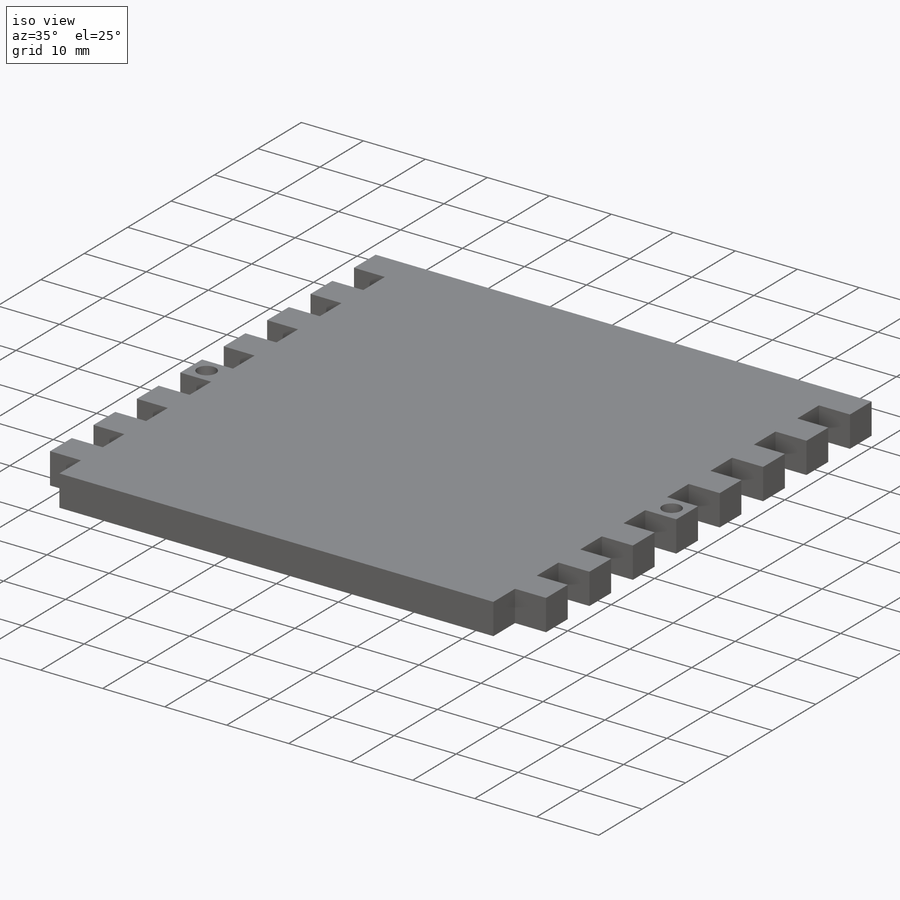
[diagram: iso view]
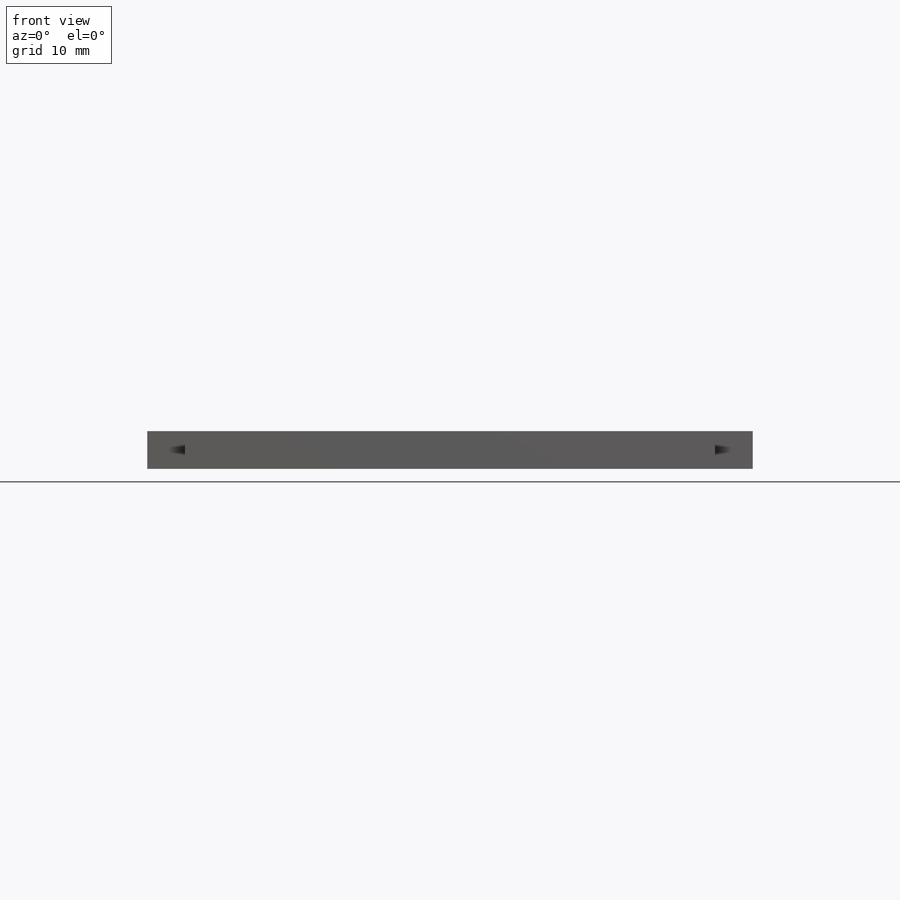
[diagram: front view]
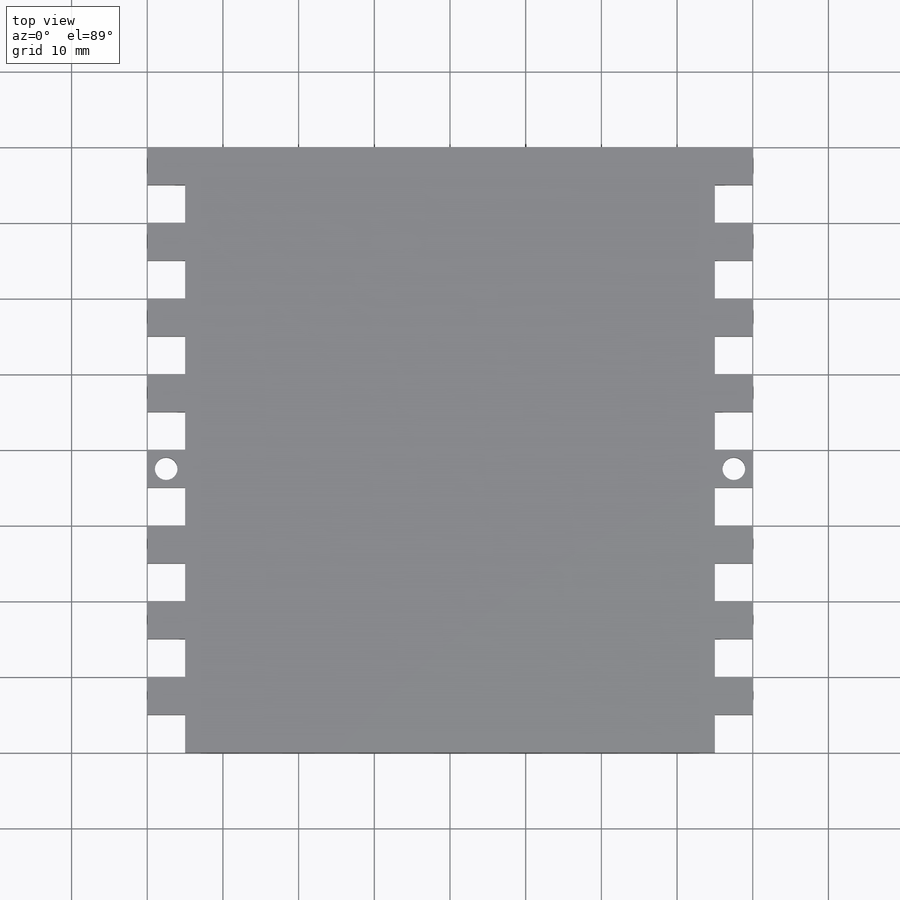
[diagram: top view]
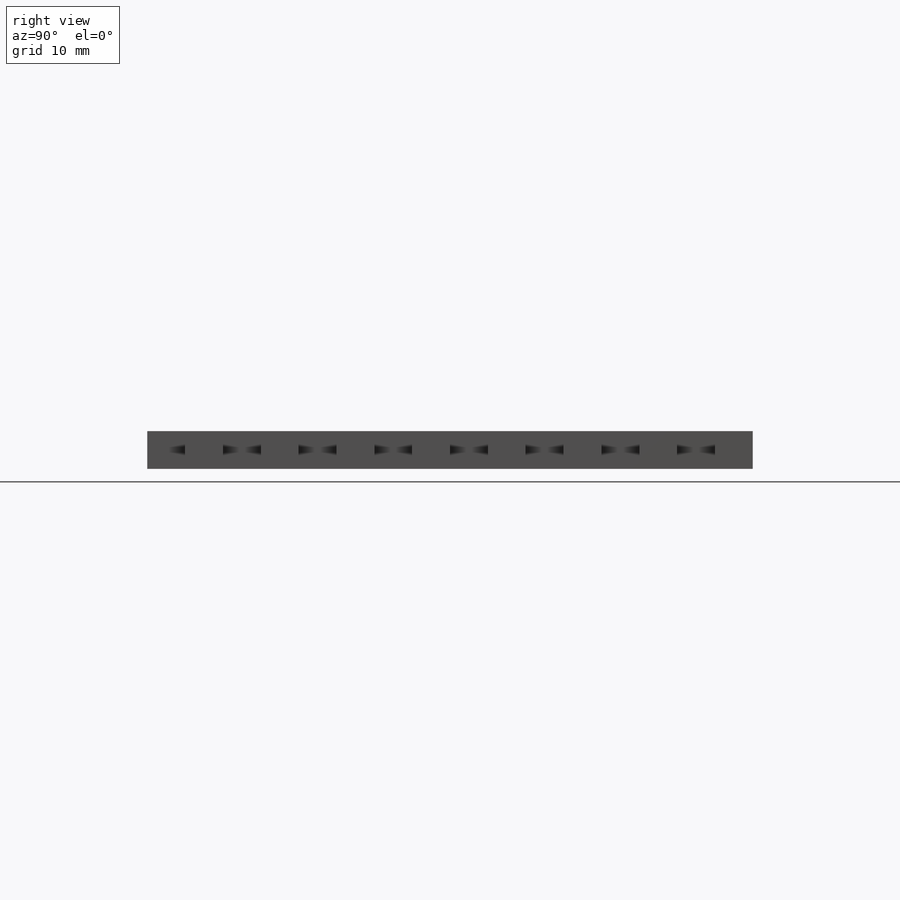
[diagram: right view]
SOLIDWORKS PART (.sldprt)
format: sldprt  version: not decoded by parser v0  size: 473,088 bytes
history: native  units: mm
features: plane x3, sketch x3, extrude x2, material x1, pattern_linear x1, cut_extrude x1, mirror x1 (+10 scaffold rows collapsed)
feature tree (22):
  scaffold x10  (default folders/planes/origin — collapsed)
  material  "Balsa"
  plane  "Plan de face"
  plane  "Plan de dessus"
  plane  "Plan de droite"
  sketch  "Esquisse1"  dims[D1=70.0mm D2=80.0mm D3=35.0mm D4=40.0mm]
  extrude  "Boss.-Extru.1"  Depth=5mm
  sketch  "Esquisse2"  dims[D1=5.0mm D2=5.0mm]
  extrude  "Boss.-Extru.2"  Depth=5mm
  pattern_linear  "Répétition linéaire1"  Count1=2 Count2=8 Spacing1=75mm Spacing2=10mm
  sketch  "Esquisse3"  dims[c1.D1=3.0mm c1.D2=3.0mm c1.D3=3.0mm c1.D4=3.0mm c1.D5=3.0mm c1.D6=3.0mm c2.D2=2.5mm c2.D3=2.5mm c2.D5=2.5mm c2.D6=2.5mm c3.D2=2.5mm]
  cut_extrude  "Enlèv. mat.-Extru.1"  Depth=10mm
  mirror  "Symétrie1"
decode coverage: 7 of 8 modeling features carry decoded parameters
note: suppression state not decoded; provenance and decode notes live in map.json
